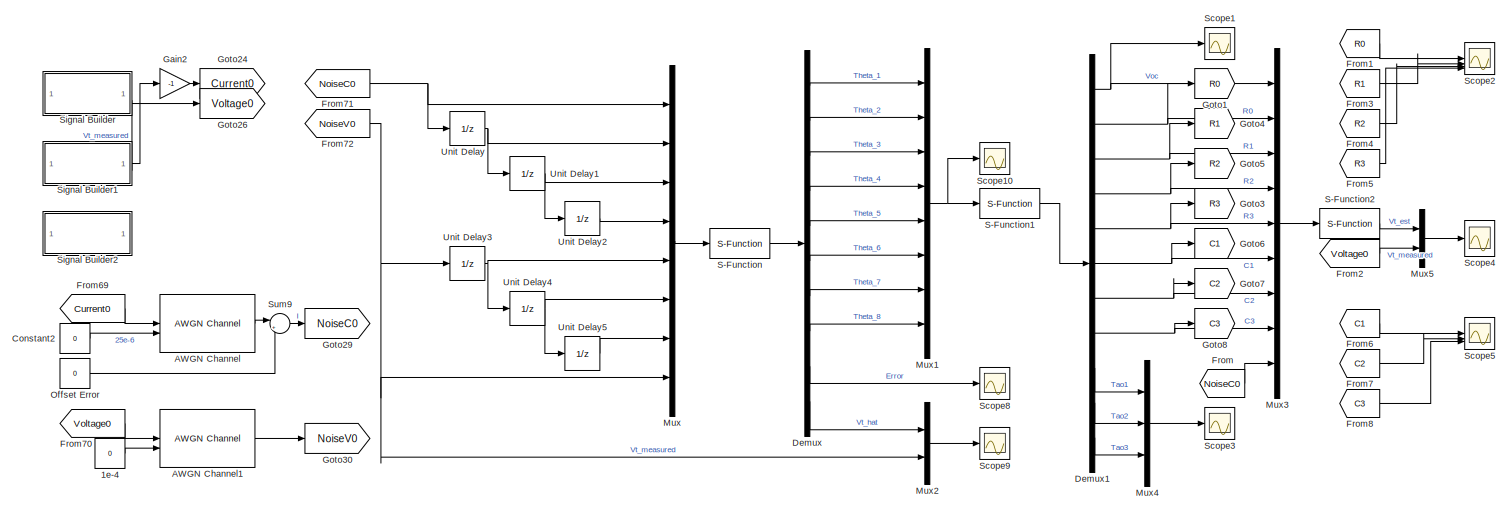
[diagram: root canvas - part 1/3, full width, top band]
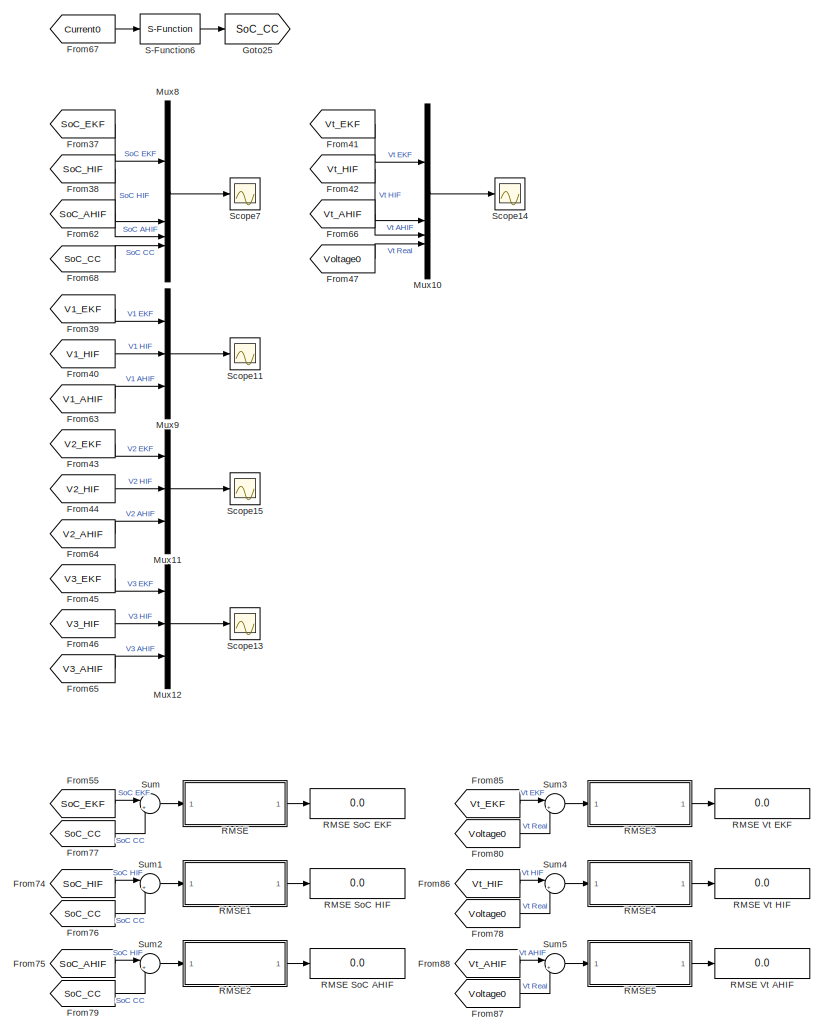
[diagram: root canvas - part 2/3, middle right region]
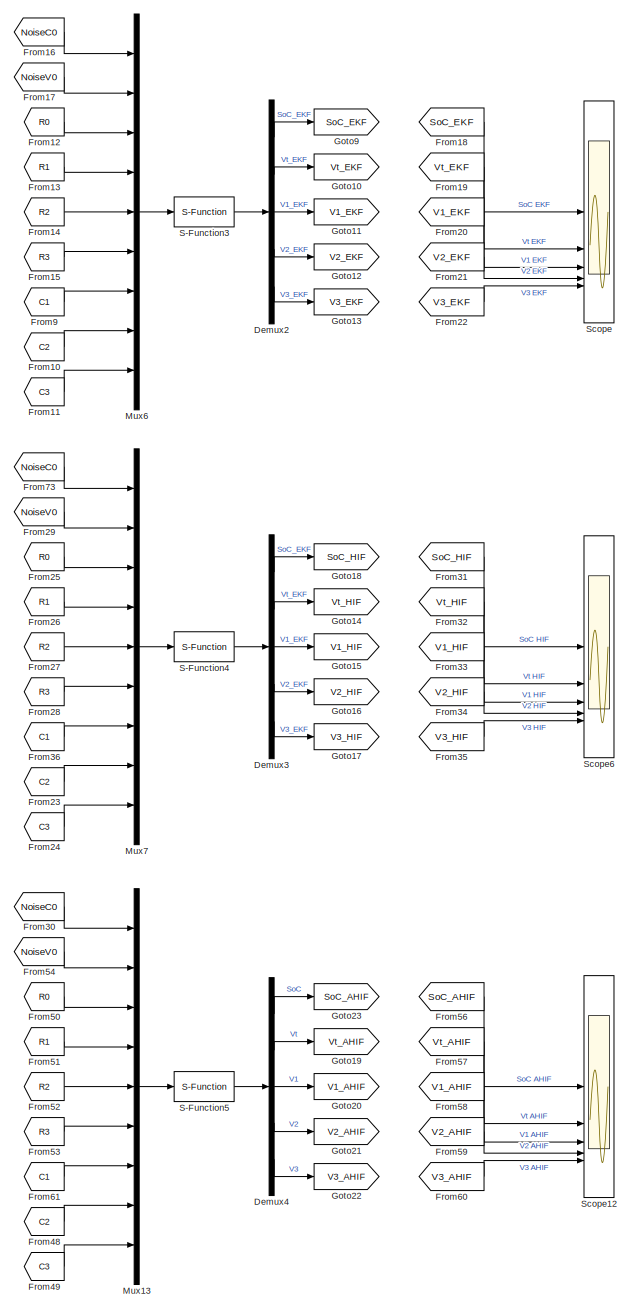
[diagram: root canvas - part 3/3, central region]
MODEL slx_1fdae3bf92bc
KIND model
CONFIG AbsTol = auto
CONFIG EnableMultiTasking = off
CONFIG FixedStep = auto
CONFIG MaxStep = auto
CONFIG MinStep = auto
CONFIG RelTol = 1e-3
CONFIG SampleTimeConstraint = Unconstrained
CONFIG SolverName = VariableStepAuto
CONFIG StartTime = 0.0
CONFIG StopTime = 6900
BLOCK [Constant] 1e-4
  Value = 0
BLOCK [Reference] AWGN Channel  REF=commchan3/AWGN
Channel
  SourceBlock = commchan3/AWGN\nChannel
  SourceType = AWGN Channel
  UserDataPersistent = on
BLOCK [Reference] AWGN Channel1  REF=commchan3/AWGN
Channel
  SourceBlock = commchan3/AWGN\nChannel
  SourceType = AWGN Channel
  UserDataPersistent = on
BLOCK [Constant] Constant2
  Value = 0
BLOCK [Demux] Demux
  Outputs = 10
BLOCK [Demux] Demux1
  Outputs = 11
BLOCK [Demux] Demux2
  Outputs = 5
BLOCK [Demux] Demux3
  Outputs = 5
BLOCK [Demux] Demux4
  Outputs = 5
BLOCK [From] From
  GotoTag = NoiseC0
BLOCK [From] From1
  GotoTag = R0
BLOCK [From] From10
  GotoTag = C2
BLOCK [From] From11
  GotoTag = C3
BLOCK [From] From12
  GotoTag = R0
BLOCK [From] From13
  GotoTag = R1
BLOCK [From] From14
  GotoTag = R2
BLOCK [From] From15
  GotoTag = R3
BLOCK [From] From16
  GotoTag = NoiseC0
BLOCK [From] From17
  GotoTag = NoiseV0
BLOCK [From] From18
  GotoTag = SoC_EKF
BLOCK [From] From19
  GotoTag = Vt_EKF
BLOCK [From] From2
  GotoTag = Voltage0
BLOCK [From] From20
  GotoTag = V1_EKF
BLOCK [From] From21
  GotoTag = V2_EKF
BLOCK [From] From22
  GotoTag = V3_EKF
BLOCK [From] From23
  GotoTag = C2
BLOCK [From] From24
  GotoTag = C3
BLOCK [From] From25
  GotoTag = R0
BLOCK [From] From26
  GotoTag = R1
BLOCK [From] From27
  GotoTag = R2
BLOCK [From] From28
  GotoTag = R3
BLOCK [From] From29
  GotoTag = NoiseV0
BLOCK [From] From3
  GotoTag = R1
BLOCK [From] From30
  GotoTag = NoiseC0
BLOCK [From] From31
  GotoTag = SoC_HIF
BLOCK [From] From32
  GotoTag = Vt_HIF
BLOCK [From] From33
  GotoTag = V1_HIF
BLOCK [From] From34
  GotoTag = V2_HIF
BLOCK [From] From35
  GotoTag = V3_HIF
BLOCK [From] From36
  GotoTag = C1
BLOCK [From] From37
  GotoTag = SoC_EKF
BLOCK [From] From38
  GotoTag = SoC_HIF
BLOCK [From] From39
  GotoTag = V1_EKF
BLOCK [From] From4
  GotoTag = R2
BLOCK [From] From40
  GotoTag = V1_HIF
BLOCK [From] From41
  GotoTag = Vt_EKF
BLOCK [From] From42
  GotoTag = Vt_HIF
BLOCK [From] From43
  GotoTag = V2_EKF
BLOCK [From] From44
  GotoTag = V2_HIF
BLOCK [From] From45
  GotoTag = V3_EKF
BLOCK [From] From46
  GotoTag = V3_HIF
BLOCK [From] From47
  GotoTag = Voltage0
BLOCK [From] From48
  GotoTag = C2
BLOCK [From] From49
  GotoTag = C3
BLOCK [From] From5
  GotoTag = R3
BLOCK [From] From50
  GotoTag = R0
BLOCK [From] From51
  GotoTag = R1
BLOCK [From] From52
  GotoTag = R2
BLOCK [From] From53
  GotoTag = R3
BLOCK [From] From54
  GotoTag = NoiseV0
BLOCK [From] From55
  GotoTag = SoC_EKF
BLOCK [From] From56
  GotoTag = SoC_AHIF
BLOCK [From] From57
  GotoTag = Vt_AHIF
BLOCK [From] From58
  GotoTag = V1_AHIF
BLOCK [From] From59
  GotoTag = V2_AHIF
BLOCK [From] From6
  GotoTag = C1
BLOCK [From] From60
  GotoTag = V3_AHIF
BLOCK [From] From61
  GotoTag = C1
BLOCK [From] From62
  GotoTag = SoC_AHIF
BLOCK [From] From63
  GotoTag = V1_AHIF
BLOCK [From] From64
  GotoTag = V2_AHIF
BLOCK [From] From65
  GotoTag = V3_AHIF
BLOCK [From] From66
  GotoTag = Vt_AHIF
BLOCK [From] From67
  GotoTag = Current0
BLOCK [From] From68
  GotoTag = SoC_CC
BLOCK [From] From69
  GotoTag = Current0
BLOCK [From] From7
  GotoTag = C2
BLOCK [From] From70
  GotoTag = Voltage0
BLOCK [From] From71
  GotoTag = NoiseC0
BLOCK [From] From72
  GotoTag = NoiseV0
BLOCK [From] From73
  GotoTag = NoiseC0
BLOCK [From] From74
  GotoTag = SoC_HIF
BLOCK [From] From75
  GotoTag = SoC_AHIF
BLOCK [From] From76
  GotoTag = SoC_CC
BLOCK [From] From77
  GotoTag = SoC_CC
BLOCK [From] From78
  GotoTag = Voltage0
BLOCK [From] From79
  GotoTag = SoC_CC
BLOCK [From] From8
  GotoTag = C3
BLOCK [From] From80
  GotoTag = Voltage0
BLOCK [From] From85
  GotoTag = Vt_EKF
BLOCK [From] From86
  GotoTag = Vt_HIF
BLOCK [From] From87
  GotoTag = Voltage0
BLOCK [From] From88
  GotoTag = Vt_AHIF
BLOCK [From] From9
  GotoTag = C1
BLOCK [Gain] Gain2
  Gain = -1
BLOCK [Goto] Goto1
  GotoTag = R0
BLOCK [Goto] Goto10
  GotoTag = Vt_EKF
BLOCK [Goto] Goto11
  GotoTag = V1_EKF
BLOCK [Goto] Goto12
  GotoTag = V2_EKF
BLOCK [Goto] Goto13
  GotoTag = V3_EKF
BLOCK [Goto] Goto14
  GotoTag = Vt_HIF
BLOCK [Goto] Goto15
  GotoTag = V1_HIF
BLOCK [Goto] Goto16
  GotoTag = V2_HIF
BLOCK [Goto] Goto17
  GotoTag = V3_HIF
BLOCK [Goto] Goto18
  GotoTag = SoC_HIF
BLOCK [Goto] Goto19
  GotoTag = Vt_AHIF
BLOCK [Goto] Goto20
  GotoTag = V1_AHIF
BLOCK [Goto] Goto21
  GotoTag = V2_AHIF
BLOCK [Goto] Goto22
  GotoTag = V3_AHIF
BLOCK [Goto] Goto23
  GotoTag = SoC_AHIF
BLOCK [Goto] Goto24
  GotoTag = Current0
BLOCK [Goto] Goto25
  GotoTag = SoC_CC
BLOCK [Goto] Goto26
  GotoTag = Voltage0
BLOCK [Goto] Goto29
  GotoTag = NoiseC0
BLOCK [Goto] Goto3
  GotoTag = R3
BLOCK [Goto] Goto30
  GotoTag = NoiseV0
BLOCK [Goto] Goto4
  GotoTag = R1
BLOCK [Goto] Goto5
  GotoTag = R2
BLOCK [Goto] Goto6
  GotoTag = C1
BLOCK [Goto] Goto7
  GotoTag = C2
BLOCK [Goto] Goto8
  GotoTag = C3
BLOCK [Goto] Goto9
  GotoTag = SoC_EKF
BLOCK [Mux] Mux
  DisplayOption = bar
  Inputs = 8
BLOCK [Mux] Mux1
  DisplayOption = bar
  Inputs = 8
BLOCK [Mux] Mux10
  DisplayOption = bar
BLOCK [Mux] Mux11
  DisplayOption = bar
  Inputs = 3
BLOCK [Mux] Mux12
  DisplayOption = bar
  Inputs = 3
BLOCK [Mux] Mux13
  DisplayOption = bar
  Inputs = 9
BLOCK [Mux] Mux2
  DisplayOption = bar
  Inputs = 2
BLOCK [Mux] Mux3
  DisplayOption = bar
  Inputs = 9
BLOCK [Mux] Mux4
  DisplayOption = bar
  Inputs = 3
BLOCK [Mux] Mux5
  DisplayOption = bar
  Inputs = 2
BLOCK [Mux] Mux6
  DisplayOption = bar
  Inputs = 9
BLOCK [Mux] Mux7
  DisplayOption = bar
  Inputs = 9
BLOCK [Mux] Mux8
  DisplayOption = bar
BLOCK [Mux] Mux9
  DisplayOption = bar
  Inputs = 3
BLOCK [Constant] Offset Error
  Value = 0
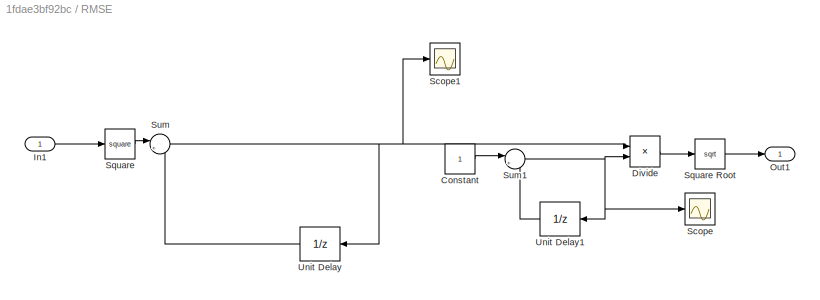
BLOCK [SubSystem] RMSE
BLOCK [Display] RMSE SoC AHIF
  Decimation = 1
BLOCK [Display] RMSE SoC EKF
  Decimation = 1
BLOCK [Display] RMSE SoC HIF
  Decimation = 1
BLOCK [Display] RMSE Vt AHIF
  Decimation = 1
BLOCK [Display] RMSE Vt EKF
  Decimation = 1
BLOCK [Display] RMSE Vt HIF
  Decimation = 1
BLOCK [Constant] RMSE/Constant
BLOCK [Product] RMSE/Divide
  Inputs = */
BLOCK [Inport] RMSE/In1
BLOCK [Outport] RMSE/Out1
BLOCK [Scope] RMSE/Scope
  Floating = off
  NumInputPorts = 1
  ScopeSpecificationString = Simulink.scopes.TimeScopeBlockCfg('CurrentConfiguration', extmgr.ConfigurationSet(extmgr.Configuration('Core','General UI',true),extmgr.Configuration('Core','Source UI',true),extmgr.Configuration('Sources','WiredSimulink',true,'DataLoggingVariableName','ScopeData1'),extmgr.Configuration('Visuals','Time Domain',true,'SerializedDisplays',{struct('MinYLimReal','-1874.00000','MaxYLimReal','16876.00000...<+1414ch>  <repeated x6 — deduplicated; at blocks: Scope>
BLOCK [Scope] RMSE/Scope1
  Floating = off
  NumInputPorts = 1
  ScopeSpecificationString = Simulink.scopes.TimeScopeBlockCfg('CurrentConfiguration', extmgr.ConfigurationSet(extmgr.Configuration('Core','General UI',true),extmgr.Configuration('Core','Source UI',true),extmgr.Configuration('Sources','WiredSimulink',true,'DataLoggingVariableName','ScopeData3'),extmgr.Configuration('Visuals','Time Domain',true,'SerializedDisplays',{struct('MinYLimReal','-28.02161','MaxYLimReal','252.19447','Y...<+1397ch>  <repeated x6 — deduplicated; at blocks: Scope1>
BLOCK [Math] RMSE/Square
  Operator = square
BLOCK [Sqrt] RMSE/Square Root
BLOCK [Sum] RMSE/Sum
  Inputs = |++
BLOCK [Sum] RMSE/Sum1
  Inputs = |++
BLOCK [UnitDelay] RMSE/Unit Delay
  HasFrameUpgradeWarning = on
BLOCK [UnitDelay] RMSE/Unit Delay1
  HasFrameUpgradeWarning = on
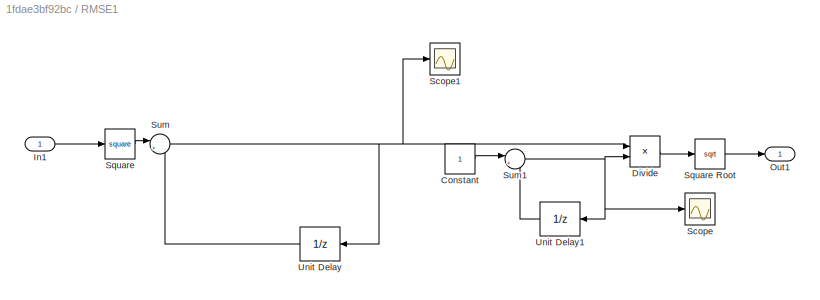
BLOCK [SubSystem] RMSE1
BLOCK [Constant] RMSE1/Constant
BLOCK [Product] RMSE1/Divide
  Inputs = */
BLOCK [Inport] RMSE1/In1
BLOCK [Outport] RMSE1/Out1
BLOCK [Scope] RMSE1/Scope
  Floating = off
  NumInputPorts = 1
BLOCK [Scope] RMSE1/Scope1
  Floating = off
  NumInputPorts = 1
BLOCK [Math] RMSE1/Square
  Operator = square
BLOCK [Sqrt] RMSE1/Square Root
BLOCK [Sum] RMSE1/Sum
  Inputs = |++
BLOCK [Sum] RMSE1/Sum1
  Inputs = |++
BLOCK [UnitDelay] RMSE1/Unit Delay
  HasFrameUpgradeWarning = on
BLOCK [UnitDelay] RMSE1/Unit Delay1
  HasFrameUpgradeWarning = on
BLOCK [SubSystem] RMSE2
BLOCK [Constant] RMSE2/Constant
BLOCK [Product] RMSE2/Divide
  Inputs = */
BLOCK [Inport] RMSE2/In1
BLOCK [Outport] RMSE2/Out1
BLOCK [Scope] RMSE2/Scope
  Floating = off
  NumInputPorts = 1
BLOCK [Scope] RMSE2/Scope1
  Floating = off
  NumInputPorts = 1
BLOCK [Math] RMSE2/Square
  Operator = square
BLOCK [Sqrt] RMSE2/Square Root
BLOCK [Sum] RMSE2/Sum
  Inputs = |++
BLOCK [Sum] RMSE2/Sum1
  Inputs = |++
BLOCK [UnitDelay] RMSE2/Unit Delay
  HasFrameUpgradeWarning = on
BLOCK [UnitDelay] RMSE2/Unit Delay1
  HasFrameUpgradeWarning = on
BLOCK [SubSystem] RMSE3
BLOCK [Constant] RMSE3/Constant
BLOCK [Product] RMSE3/Divide
  Inputs = */
BLOCK [Inport] RMSE3/In1
BLOCK [Outport] RMSE3/Out1
BLOCK [Scope] RMSE3/Scope
  Floating = off
  NumInputPorts = 1
BLOCK [Scope] RMSE3/Scope1
  Floating = off
  NumInputPorts = 1
BLOCK [Math] RMSE3/Square
  Operator = square
BLOCK [Sqrt] RMSE3/Square Root
BLOCK [Sum] RMSE3/Sum
  Inputs = |++
BLOCK [Sum] RMSE3/Sum1
  Inputs = |++
BLOCK [UnitDelay] RMSE3/Unit Delay
  HasFrameUpgradeWarning = on
BLOCK [UnitDelay] RMSE3/Unit Delay1
  HasFrameUpgradeWarning = on
BLOCK [SubSystem] RMSE4
BLOCK [Constant] RMSE4/Constant
BLOCK [Product] RMSE4/Divide
  Inputs = */
BLOCK [Inport] RMSE4/In1
BLOCK [Outport] RMSE4/Out1
BLOCK [Scope] RMSE4/Scope
  Floating = off
  NumInputPorts = 1
BLOCK [Scope] RMSE4/Scope1
  Floating = off
  NumInputPorts = 1
BLOCK [Math] RMSE4/Square
  Operator = square
BLOCK [Sqrt] RMSE4/Square Root
BLOCK [Sum] RMSE4/Sum
  Inputs = |++
BLOCK [Sum] RMSE4/Sum1
  Inputs = |++
BLOCK [UnitDelay] RMSE4/Unit Delay
  HasFrameUpgradeWarning = on
BLOCK [UnitDelay] RMSE4/Unit Delay1
  HasFrameUpgradeWarning = on
BLOCK [SubSystem] RMSE5
BLOCK [Constant] RMSE5/Constant
BLOCK [Product] RMSE5/Divide
  Inputs = */
BLOCK [Inport] RMSE5/In1
BLOCK [Outport] RMSE5/Out1
BLOCK [Scope] RMSE5/Scope
  Floating = off
  NumInputPorts = 1
BLOCK [Scope] RMSE5/Scope1
  Floating = off
  NumInputPorts = 1
BLOCK [Math] RMSE5/Square
  Operator = square
BLOCK [Sqrt] RMSE5/Square Root
BLOCK [Sum] RMSE5/Sum
  Inputs = |++
BLOCK [Sum] RMSE5/Sum1
  Inputs = |++
BLOCK [UnitDelay] RMSE5/Unit Delay
  HasFrameUpgradeWarning = on
BLOCK [UnitDelay] RMSE5/Unit Delay1
  HasFrameUpgradeWarning = on
BLOCK [S-Function] S-Function
  EnableBusSupport = off
  FunctionName = RLS
  SFcnIsStateOwnerBlock = off
  SFunctionDeploymentMode = off
BLOCK [S-Function] S-Function1
  EnableBusSupport = off
  FunctionName = SKEMA_A
  SFcnIsStateOwnerBlock = off
  SFunctionDeploymentMode = off
BLOCK [S-Function] S-Function2
  EnableBusSupport = off
  FunctionName = VT_EST
  SFcnIsStateOwnerBlock = off
  SFunctionDeploymentMode = off
BLOCK [S-Function] S-Function3
  EnableBusSupport = off
  FunctionName = EKF
  SFcnIsStateOwnerBlock = off
  SFunctionDeploymentMode = off
BLOCK [S-Function] S-Function4
  EnableBusSupport = off
  FunctionName = HIF3
  SFcnIsStateOwnerBlock = off
  SFunctionDeploymentMode = off
BLOCK [S-Function] S-Function5
  EnableBusSupport = off
  FunctionName = AHIF3
  SFcnIsStateOwnerBlock = off
  SFunctionDeploymentMode = off
BLOCK [S-Function] S-Function6
  EnableBusSupport = off
  FunctionName = CC
  SFcnIsStateOwnerBlock = off
  SFunctionDeploymentMode = off
BLOCK [Scope] Scope
  Floating = off
  NumInputPorts = 5
  ScopeSpecificationString = Simulink.scopes.TimeScopeBlockCfg('CurrentConfiguration', extmgr.ConfigurationSet(extmgr.Configuration('Core','General UI',true,'FigureColor',[0.952941176470588 0.870588235294118 0.733333333333333]),extmgr.Configuration('Core','Source UI',true),extmgr.Configuration('Sources','WiredSimulink',true,'DataLoggingVariableName','ScopeData1'),extmgr.Configuration('Visuals','Time Domain',true,'SerializedDi...<+5823ch>
BLOCK [Scope] Scope1
  Floating = off
  NumInputPorts = 1
  ScopeSpecificationString = Simulink.scopes.TimeScopeBlockCfg('CurrentConfiguration', extmgr.ConfigurationSet(extmgr.Configuration('Core','General UI',true,'FigureColor',[1 1 1]),extmgr.Configuration('Core','Source UI',true),extmgr.Configuration('Sources','WiredSimulink',true,'DataLoggingVariableName','Voc','DataLoggingSaveFormat','StructureWithTime','DataLoggingDecimation','1','DataLogging',true),extmgr.Configuration('Visua...<+2639ch>
BLOCK [Scope] Scope10
  Floating = off
  NumInputPorts = 1
  ScopeSpecificationString = Simulink.scopes.TimeScopeBlockCfg('CurrentConfiguration', extmgr.ConfigurationSet(extmgr.Configuration('Core','General UI',true,'FigureColor',[1 1 1]),extmgr.Configuration('Core','Source UI',true),extmgr.Configuration('Sources','WiredSimulink',true,'DataLoggingVariableName','Theta','DataLoggingSaveFormat','StructureWithTime','DataLoggingDecimation','1','DataLogging',true),extmgr.Configuration('Vis...<+2719ch>
BLOCK [Scope] Scope11
  Floating = off
  NumInputPorts = 1
  ScopeSpecificationString = Simulink.scopes.TimeScopeBlockCfg('CurrentConfiguration', extmgr.ConfigurationSet(extmgr.Configuration('Core','General UI',true,'FigureColor',[1 1 1]),extmgr.Configuration('Core','Source UI',true),extmgr.Configuration('Sources','WiredSimulink',true,'DataLoggingVariableName','ScopeData3'),extmgr.Configuration('Visuals','Time Domain',true,'SerializedDisplays',{struct('MinYLimReal','-0.38118','MaxYLi...<+1866ch>
BLOCK [Scope] Scope12
  Floating = off
  NumInputPorts = 5
  ScopeSpecificationString = Simulink.scopes.TimeScopeBlockCfg('CurrentConfiguration', extmgr.ConfigurationSet(extmgr.Configuration('Core','General UI',true,'FigureColor',[0.952941176470588 0.870588235294118 0.733333333333333]),extmgr.Configuration('Core','Source UI',true),extmgr.Configuration('Sources','WiredSimulink',true,'DataLoggingVariableName','ScopeData4'),extmgr.Configuration('Visuals','Time Domain',true,'SerializedDi...<+5859ch>
BLOCK [Scope] Scope13
  Floating = off
  NumInputPorts = 1
  ScopeSpecificationString = Simulink.scopes.TimeScopeBlockCfg('CurrentConfiguration', extmgr.ConfigurationSet(extmgr.Configuration('Core','General UI',true,'FigureColor',[1 1 1]),extmgr.Configuration('Core','Source UI',true),extmgr.Configuration('Sources','WiredSimulink',true,'DataLoggingVariableName','ScopeData5'),extmgr.Configuration('Visuals','Time Domain',true,'SerializedDisplays',{struct('MinYLimReal','-0.02745','MaxYLi...<+1865ch>
BLOCK [Scope] Scope14
  Floating = off
  NumInputPorts = 1
  ScopeSpecificationString = Simulink.scopes.TimeScopeBlockCfg('CurrentConfiguration', extmgr.ConfigurationSet(extmgr.Configuration('Core','General UI',true,'FigureColor',[1 1 1]),extmgr.Configuration('Core','Source UI',true),extmgr.Configuration('Sources','WiredSimulink',true,'DataLoggingVariableName','ScopeData6'),extmgr.Configuration('Visuals','Time Domain',true,'SerializedDisplays',{struct('MinYLimReal','2','MaxYLimReal',...<+2028ch>
BLOCK [Scope] Scope15
  Floating = off
  NumInputPorts = 1
  ScopeSpecificationString = Simulink.scopes.TimeScopeBlockCfg('CurrentConfiguration', extmgr.ConfigurationSet(extmgr.Configuration('Core','General UI',true,'FigureColor',[1 1 1]),extmgr.Configuration('Core','Source UI',true),extmgr.Configuration('Sources','WiredSimulink',true,'DataLoggingVariableName','ScopeData7'),extmgr.Configuration('Visuals','Time Domain',true,'SerializedDisplays',{struct('MinYLimReal','-0.12731','MaxYLi...<+1866ch>
BLOCK [Scope] Scope2
  Floating = off
  NumInputPorts = 4
  ScopeSpecificationString = Simulink.scopes.TimeScopeBlockCfg('CurrentConfiguration', extmgr.ConfigurationSet(extmgr.Configuration('Core','General UI',true,'FigureColor',[1 1 1]),extmgr.Configuration('Core','Source UI',true),extmgr.Configuration('Sources','WiredSimulink',true,'DataLoggingVariableName','Capacitance','DataLoggingSaveFormat','StructureWithTime','DataLoggingDecimation','1','DataLogging',true),extmgr.Configuratio...<+5225ch>
BLOCK [Scope] Scope3
  Floating = off
  NumInputPorts = 1
  ScopeSpecificationString = Simulink.scopes.TimeScopeBlockCfg('CurrentConfiguration', extmgr.ConfigurationSet(extmgr.Configuration('Core','General UI',true,'FigureColor',[1 1 1]),extmgr.Configuration('Core','Source UI',true),extmgr.Configuration('Sources','WiredSimulink',true,'DataLoggingVariableName','Tao','DataLoggingSaveFormat','StructureWithTime','DataLoggingDecimation','1','DataLogging',true),extmgr.Configuration('Visua...<+2675ch>
BLOCK [Scope] Scope4
  Floating = off
  NumInputPorts = 1
  ScopeSpecificationString = Simulink.scopes.TimeScopeBlockCfg('CurrentConfiguration', extmgr.ConfigurationSet(extmgr.Configuration('Core','General UI',true,'FigureColor',[1 1 1]),extmgr.Configuration('Core','Source UI',true),extmgr.Configuration('Sources','WiredSimulink',true,'DataLoggingVariableName','Vtest_2','DataLoggingSaveFormat','StructureWithTime','DataLoggingDecimation','1','DataLogging',true),extmgr.Configuration('V...<+2619ch>
BLOCK [Scope] Scope5
  Floating = off
  NumInputPorts = 3
  ScopeSpecificationString = Simulink.scopes.TimeScopeBlockCfg('CurrentConfiguration', extmgr.ConfigurationSet(extmgr.Configuration('Core','General UI',true,'FigureColor',[1 1 1]),extmgr.Configuration('Core','Source UI',true),extmgr.Configuration('Sources','WiredSimulink',true,'DataLoggingVariableName','Resistance1','DataLoggingSaveFormat','StructureWithTime','DataLoggingDecimation','1','DataLogging',true),extmgr.Configuratio...<+4333ch>
BLOCK [Scope] Scope6
  Floating = off
  NumInputPorts = 5
  ScopeSpecificationString = Simulink.scopes.TimeScopeBlockCfg('CurrentConfiguration', extmgr.ConfigurationSet(extmgr.Configuration('Core','General UI',true,'FigureColor',[0.952941176470588 0.870588235294118 0.733333333333333]),extmgr.Configuration('Core','Source UI',true),extmgr.Configuration('Sources','WiredSimulink',true,'DataLoggingVariableName','ScopeData1'),extmgr.Configuration('Visuals','Time Domain',true,'SerializedDi...<+5783ch>
BLOCK [Scope] Scope7
  Floating = off
  NumInputPorts = 1
  ScopeSpecificationString = Simulink.scopes.TimeScopeBlockCfg('CurrentConfiguration', extmgr.ConfigurationSet(extmgr.Configuration('Core','General UI',true,'FigureColor',[1 1 1]),extmgr.Configuration('Core','Source UI',true),extmgr.Configuration('Sources','WiredSimulink',true,'DataLoggingVariableName','ScopeData2'),extmgr.Configuration('Visuals','Time Domain',true,'TimeAxisLabels','All','SerializedDisplays',{struct('MinYLimR...<+1968ch>
BLOCK [Scope] Scope8
  Floating = off
  NumInputPorts = 1
  ScopeSpecificationString = Simulink.scopes.TimeScopeBlockCfg('CurrentConfiguration', extmgr.ConfigurationSet(extmgr.Configuration('Core','General UI',true),extmgr.Configuration('Core','Source UI',true),extmgr.Configuration('Sources','WiredSimulink',true,'DataLoggingVariableName','ScopeData8'),extmgr.Configuration('Visuals','Time Domain',true,'SerializedDisplays',{struct('MinYLimReal','-0.62226','MaxYLimReal','4.01802','YLab...<+1421ch>
BLOCK [Scope] Scope9
  Floating = off
  NumInputPorts = 1
  ScopeSpecificationString = Simulink.scopes.TimeScopeBlockCfg('CurrentConfiguration', extmgr.ConfigurationSet(extmgr.Configuration('Core','General UI',true,'FigureColor',[1 1 1]),extmgr.Configuration('Core','Source UI',true),extmgr.Configuration('Sources','WiredSimulink',true,'DataLoggingVariableName','Vterminal','DataLogging',true,'DataLoggingSaveFormat','StructureWithTime'),extmgr.Configuration('Visuals','Time Domain',true...<+1749ch>
BLOCK [SubSystem] Signal Builder
  ClipboardFcn = sigbuilder_block('clipboard');
  CloseFcn = sigbuilder_block('close');
  ContinueFcn = sigbuilder_block('continue');
  CopyFcn = sigbuilder_block('copy');
  DeleteFcn = sigbuilder_block('delete');
  LoadFcn = sigbuilder_block('load');
  MaskHideContents = on
  ModelCloseFcn = sigbuilder_block('modelClose');
  NameChangeFcn = sigbuilder_block('namechange');
  OpenFcn = sigbuilder_block('open',[224 102.5 401 351.5 ]);
  PauseFcn = sigbuilder_block('pause');
  PreSaveFcn = sigbuilder_block('preSave');
  StartFcn = sigbuilder_block('start');
  StopFcn = sigbuilder_block('stop');
  Tag = STV Subsys
BLOCK [Outport] Signal Builder/Current(A)
  Tag = STV Outport
BLOCK [Demux] Signal Builder/Demux
  DisplayOption = none
  Outputs = 2
  Tag = STV Demux
BLOCK [FromWorkspace] Signal Builder/FromWs
  Tag = STV FromWs
  VariableName = tuvar
BLOCK [Outport] Signal Builder/Voltage(V)
  Port = 2
  Tag = STV Outport
BLOCK [SubSystem] Signal Builder1
  ClipboardFcn = sigbuilder_block('clipboard');
  CloseFcn = sigbuilder_block('close');
  ContinueFcn = sigbuilder_block('continue');
  CopyFcn = sigbuilder_block('copy');
  DeleteFcn = sigbuilder_block('delete');
  LoadFcn = sigbuilder_block('load');
  MaskHideContents = on
  ModelCloseFcn = sigbuilder_block('modelClose');
  NameChangeFcn = sigbuilder_block('namechange');
  OpenFcn = sigbuilder_block('open',[224 102.5 401 351.5 ]);
  PauseFcn = sigbuilder_block('pause');
  PreSaveFcn = sigbuilder_block('preSave');
  StartFcn = sigbuilder_block('start');
  StopFcn = sigbuilder_block('stop');
  Tag = STV Subsys
BLOCK [Outport] Signal Builder1/Current(A)
  Tag = STV Outport
BLOCK [Demux] Signal Builder1/Demux
  DisplayOption = none
  Outputs = 2
  Tag = STV Demux
BLOCK [FromWorkspace] Signal Builder1/FromWs
  Tag = STV FromWs
  VariableName = tuvar
BLOCK [Outport] Signal Builder1/Voltage(V)
  Port = 2
  Tag = STV Outport
BLOCK [SubSystem] Signal Builder2
  ClipboardFcn = sigbuilder_block('clipboard');
  CloseFcn = sigbuilder_block('close');
  ContinueFcn = sigbuilder_block('continue');
  CopyFcn = sigbuilder_block('copy');
  DeleteFcn = sigbuilder_block('delete');
  LoadFcn = sigbuilder_block('load');
  MaskHideContents = on
  ModelCloseFcn = sigbuilder_block('modelClose');
  NameChangeFcn = sigbuilder_block('namechange');
  OpenFcn = sigbuilder_block('open',[224 102.5 401 351.5 ]);
  PauseFcn = sigbuilder_block('pause');
  PreSaveFcn = sigbuilder_block('preSave');
  StartFcn = sigbuilder_block('start');
  StopFcn = sigbuilder_block('stop');
  Tag = STV Subsys
BLOCK [Outport] Signal Builder2/Current(A)
  Tag = STV Outport
BLOCK [Demux] Signal Builder2/Demux
  DisplayOption = none
  Outputs = 2
  Tag = STV Demux
BLOCK [FromWorkspace] Signal Builder2/FromWs
  Tag = STV FromWs
  VariableName = tuvar
BLOCK [Outport] Signal Builder2/Voltage(V)
  Port = 2
  Tag = STV Outport
BLOCK [Sum] Sum
  Inputs = |+-
BLOCK [Sum] Sum1
  Inputs = |+-
BLOCK [Sum] Sum2
  Inputs = |+-
BLOCK [Sum] Sum3
  Inputs = |+-
BLOCK [Sum] Sum4
  Inputs = |+-
BLOCK [Sum] Sum5
  Inputs = |+-
BLOCK [Sum] Sum9
  Inputs = |++
BLOCK [UnitDelay] Unit Delay
  HasFrameUpgradeWarning = on
  SampleTime = -1
BLOCK [UnitDelay] Unit Delay1
  HasFrameUpgradeWarning = on
  SampleTime = -1
BLOCK [UnitDelay] Unit Delay2
  HasFrameUpgradeWarning = on
  SampleTime = -1
BLOCK [UnitDelay] Unit Delay3
  HasFrameUpgradeWarning = on
  SampleTime = -1
BLOCK [UnitDelay] Unit Delay4
  HasFrameUpgradeWarning = on
  SampleTime = -1
BLOCK [UnitDelay] Unit Delay5
  HasFrameUpgradeWarning = on
  SampleTime = -1
LINE 1e-4:1 -> AWGN Channel1:2
LINE AWGN Channel1:1 -> Goto30:1
LINE AWGN Channel:1 -> Sum9:1
LINE Constant2:1 -> AWGN Channel:2
NET Demux1:1 -> Mux3:1, Scope1:1
LINE Demux1:10 -> Mux4:2
LINE Demux1:11 -> Mux4:3
NET Demux1:2 -> Goto1:1, Mux3:2
NET Demux1:3 -> Goto4:1, Mux3:3
NET Demux1:4 -> Goto5:1, Mux3:4
NET Demux1:5 -> Goto3:1, Mux3:5
NET Demux1:6 -> Goto6:1, Mux3:6
NET Demux1:7 -> Goto7:1, Mux3:7
NET Demux1:8 -> Goto8:1, Mux3:8
LINE Demux1:9 -> Mux4:1
LINE Demux2:1 -> Goto9:1
LINE Demux2:2 -> Goto10:1
LINE Demux2:3 -> Goto11:1
LINE Demux2:4 -> Goto12:1
LINE Demux2:5 -> Goto13:1
LINE Demux3:1 -> Goto18:1
LINE Demux3:2 -> Goto14:1
LINE Demux3:3 -> Goto15:1
LINE Demux3:4 -> Goto16:1
LINE Demux3:5 -> Goto17:1
LINE Demux4:1 -> Goto23:1
LINE Demux4:2 -> Goto19:1
LINE Demux4:3 -> Goto20:1
LINE Demux4:4 -> Goto21:1
LINE Demux4:5 -> Goto22:1
LINE Demux:1 -> Mux1:1
LINE Demux:10 -> Mux2:1
LINE Demux:2 -> Mux1:2
LINE Demux:3 -> Mux1:3
LINE Demux:4 -> Mux1:4
LINE Demux:5 -> Mux1:5
LINE Demux:6 -> Mux1:6
LINE Demux:7 -> Mux1:7
LINE Demux:8 -> Mux1:8
LINE Demux:9 -> Scope8:1
LINE From10:1 -> Mux6:8
LINE From11:1 -> Mux6:9
LINE From12:1 -> Mux6:3
LINE From13:1 -> Mux6:4
LINE From14:1 -> Mux6:5
LINE From15:1 -> Mux6:6
LINE From16:1 -> Mux6:1
LINE From17:1 -> Mux6:2
LINE From18:1 -> Scope:1
LINE From19:1 -> Scope:2
LINE From1:1 -> Scope2:1
LINE From20:1 -> Scope:3
LINE From21:1 -> Scope:4
LINE From22:1 -> Scope:5
LINE From23:1 -> Mux7:8
LINE From24:1 -> Mux7:9
LINE From25:1 -> Mux7:3
LINE From26:1 -> Mux7:4
LINE From27:1 -> Mux7:5
LINE From28:1 -> Mux7:6
LINE From29:1 -> Mux7:2
LINE From2:1 -> Mux5:2
LINE From30:1 -> Mux13:1
LINE From31:1 -> Scope6:1
LINE From32:1 -> Scope6:2
LINE From33:1 -> Scope6:3
LINE From34:1 -> Scope6:4
LINE From35:1 -> Scope6:5
LINE From36:1 -> Mux7:7
LINE From37:1 -> Mux8:1
LINE From38:1 -> Mux8:2
LINE From39:1 -> Mux9:1
LINE From3:1 -> Scope2:2
LINE From40:1 -> Mux9:2
LINE From41:1 -> Mux10:1
LINE From42:1 -> Mux10:2
LINE From43:1 -> Mux11:1
LINE From44:1 -> Mux11:2
LINE From45:1 -> Mux12:1
LINE From46:1 -> Mux12:2
LINE From47:1 -> Mux10:4
LINE From48:1 -> Mux13:8
LINE From49:1 -> Mux13:9
LINE From4:1 -> Scope2:3
LINE From50:1 -> Mux13:3
LINE From51:1 -> Mux13:4
LINE From52:1 -> Mux13:5
LINE From53:1 -> Mux13:6
LINE From54:1 -> Mux13:2
LINE From55:1 -> Sum:1
LINE From56:1 -> Scope12:1
LINE From57:1 -> Scope12:2
LINE From58:1 -> Scope12:3
LINE From59:1 -> Scope12:4
LINE From5:1 -> Scope2:4
LINE From60:1 -> Scope12:5
LINE From61:1 -> Mux13:7
LINE From62:1 -> Mux8:3
LINE From63:1 -> Mux9:3
LINE From64:1 -> Mux11:3
LINE From65:1 -> Mux12:3
LINE From66:1 -> Mux10:3
LINE From67:1 -> S-Function6:1
LINE From68:1 -> Mux8:4
LINE From69:1 -> AWGN Channel:1
LINE From6:1 -> Scope5:1
LINE From70:1 -> AWGN Channel1:1
NET From71:1 -> Mux:1, Unit Delay:1
NET From72:1 -> Mux2:2, Mux:8, Unit Delay3:1
LINE From73:1 -> Mux7:1
LINE From74:1 -> Sum1:1
LINE From75:1 -> Sum2:1
LINE From76:1 -> Sum1:2
LINE From77:1 -> Sum:2
LINE From78:1 -> Sum4:2
LINE From79:1 -> Sum2:2
LINE From7:1 -> Scope5:2
LINE From80:1 -> Sum3:2
LINE From85:1 -> Sum3:1
LINE From86:1 -> Sum4:1
LINE From87:1 -> Sum5:2
LINE From88:1 -> Sum5:1
LINE From8:1 -> Scope5:3
LINE From9:1 -> Mux6:7
LINE From:1 -> Mux3:9
LINE Gain2:1 -> Goto24:1
LINE Mux10:1 -> Scope14:1
LINE Mux11:1 -> Scope15:1
LINE Mux12:1 -> Scope13:1
LINE Mux13:1 -> S-Function5:1
NET Mux1:1 -> S-Function1:1, Scope10:1
LINE Mux2:1 -> Scope9:1
LINE Mux3:1 -> S-Function2:1
LINE Mux4:1 -> Scope3:1
LINE Mux5:1 -> Scope4:1
LINE Mux6:1 -> S-Function3:1
LINE Mux7:1 -> S-Function4:1
LINE Mux8:1 -> Scope7:1
LINE Mux9:1 -> Scope11:1
LINE Mux:1 -> S-Function:1
LINE Offset Error:1 -> Sum9:2
LINE RMSE/Constant:1 -> RMSE/Sum1:1
LINE RMSE/Divide:1 -> RMSE/Square Root:1
LINE RMSE/In1:1 -> RMSE/Square:1
LINE RMSE/Square Root:1 -> RMSE/Out1:1
LINE RMSE/Square:1 -> RMSE/Sum:1
NET RMSE/Sum1:1 -> RMSE/Divide:2, RMSE/Scope:1, RMSE/Unit Delay1:1
NET RMSE/Sum:1 -> RMSE/Divide:1, RMSE/Scope1:1, RMSE/Unit Delay:1
LINE RMSE/Unit Delay1:1 -> RMSE/Sum1:2
LINE RMSE/Unit Delay:1 -> RMSE/Sum:2
LINE RMSE1/Constant:1 -> RMSE1/Sum1:1
LINE RMSE1/Divide:1 -> RMSE1/Square Root:1
LINE RMSE1/In1:1 -> RMSE1/Square:1
LINE RMSE1/Square Root:1 -> RMSE1/Out1:1
LINE RMSE1/Square:1 -> RMSE1/Sum:1
NET RMSE1/Sum1:1 -> RMSE1/Divide:2, RMSE1/Scope:1, RMSE1/Unit Delay1:1
NET RMSE1/Sum:1 -> RMSE1/Divide:1, RMSE1/Scope1:1, RMSE1/Unit Delay:1
LINE RMSE1/Unit Delay1:1 -> RMSE1/Sum1:2
LINE RMSE1/Unit Delay:1 -> RMSE1/Sum:2
LINE RMSE1:1 -> RMSE SoC HIF:1
LINE RMSE2/Constant:1 -> RMSE2/Sum1:1
LINE RMSE2/Divide:1 -> RMSE2/Square Root:1
LINE RMSE2/In1:1 -> RMSE2/Square:1
LINE RMSE2/Square Root:1 -> RMSE2/Out1:1
LINE RMSE2/Square:1 -> RMSE2/Sum:1
NET RMSE2/Sum1:1 -> RMSE2/Divide:2, RMSE2/Scope:1, RMSE2/Unit Delay1:1
NET RMSE2/Sum:1 -> RMSE2/Divide:1, RMSE2/Scope1:1, RMSE2/Unit Delay:1
LINE RMSE2/Unit Delay1:1 -> RMSE2/Sum1:2
LINE RMSE2/Unit Delay:1 -> RMSE2/Sum:2
LINE RMSE2:1 -> RMSE SoC AHIF:1
LINE RMSE3/Constant:1 -> RMSE3/Sum1:1
LINE RMSE3/Divide:1 -> RMSE3/Square Root:1
LINE RMSE3/In1:1 -> RMSE3/Square:1
LINE RMSE3/Square Root:1 -> RMSE3/Out1:1
LINE RMSE3/Square:1 -> RMSE3/Sum:1
NET RMSE3/Sum1:1 -> RMSE3/Divide:2, RMSE3/Scope:1, RMSE3/Unit Delay1:1
NET RMSE3/Sum:1 -> RMSE3/Divide:1, RMSE3/Scope1:1, RMSE3/Unit Delay:1
LINE RMSE3/Unit Delay1:1 -> RMSE3/Sum1:2
LINE RMSE3/Unit Delay:1 -> RMSE3/Sum:2
LINE RMSE3:1 -> RMSE Vt EKF:1
LINE RMSE4/Constant:1 -> RMSE4/Sum1:1
LINE RMSE4/Divide:1 -> RMSE4/Square Root:1
LINE RMSE4/In1:1 -> RMSE4/Square:1
LINE RMSE4/Square Root:1 -> RMSE4/Out1:1
LINE RMSE4/Square:1 -> RMSE4/Sum:1
NET RMSE4/Sum1:1 -> RMSE4/Divide:2, RMSE4/Scope:1, RMSE4/Unit Delay1:1
NET RMSE4/Sum:1 -> RMSE4/Divide:1, RMSE4/Scope1:1, RMSE4/Unit Delay:1
LINE RMSE4/Unit Delay1:1 -> RMSE4/Sum1:2
LINE RMSE4/Unit Delay:1 -> RMSE4/Sum:2
LINE RMSE4:1 -> RMSE Vt HIF:1
LINE RMSE5/Constant:1 -> RMSE5/Sum1:1
LINE RMSE5/Divide:1 -> RMSE5/Square Root:1
LINE RMSE5/In1:1 -> RMSE5/Square:1
LINE RMSE5/Square Root:1 -> RMSE5/Out1:1
LINE RMSE5/Square:1 -> RMSE5/Sum:1
NET RMSE5/Sum1:1 -> RMSE5/Divide:2, RMSE5/Scope:1, RMSE5/Unit Delay1:1
NET RMSE5/Sum:1 -> RMSE5/Divide:1, RMSE5/Scope1:1, RMSE5/Unit Delay:1
LINE RMSE5/Unit Delay1:1 -> RMSE5/Sum1:2
LINE RMSE5/Unit Delay:1 -> RMSE5/Sum:2
LINE RMSE5:1 -> RMSE Vt AHIF:1
LINE RMSE:1 -> RMSE SoC EKF:1
LINE S-Function1:1 -> Demux1:1
LINE S-Function2:1 -> Mux5:1
LINE S-Function3:1 -> Demux2:1
LINE S-Function4:1 -> Demux3:1
LINE S-Function5:1 -> Demux4:1
LINE S-Function6:1 -> Goto25:1
LINE S-Function:1 -> Demux:1
LINE Signal Builder1:1 -> Gain2:1
LINE Signal Builder1:2 -> Goto26:1
LINE Sum1:1 -> RMSE1:1
LINE Sum2:1 -> RMSE2:1
LINE Sum3:1 -> RMSE3:1
LINE Sum4:1 -> RMSE4:1
LINE Sum5:1 -> RMSE5:1
LINE Sum9:1 -> Goto29:1
LINE Sum:1 -> RMSE:1
NET Unit Delay1:1 -> Mux:3, Unit Delay2:1
LINE Unit Delay2:1 -> Mux:4
NET Unit Delay3:1 -> Mux:5, Unit Delay4:1
NET Unit Delay4:1 -> Mux:6, Unit Delay5:1
LINE Unit Delay5:1 -> Mux:7
NET Unit Delay:1 -> Mux:2, Unit Delay1:1
note: NET lines group one-source signal fan-out (src -> all destinations, sorted); 1:1 wires keep LINE
